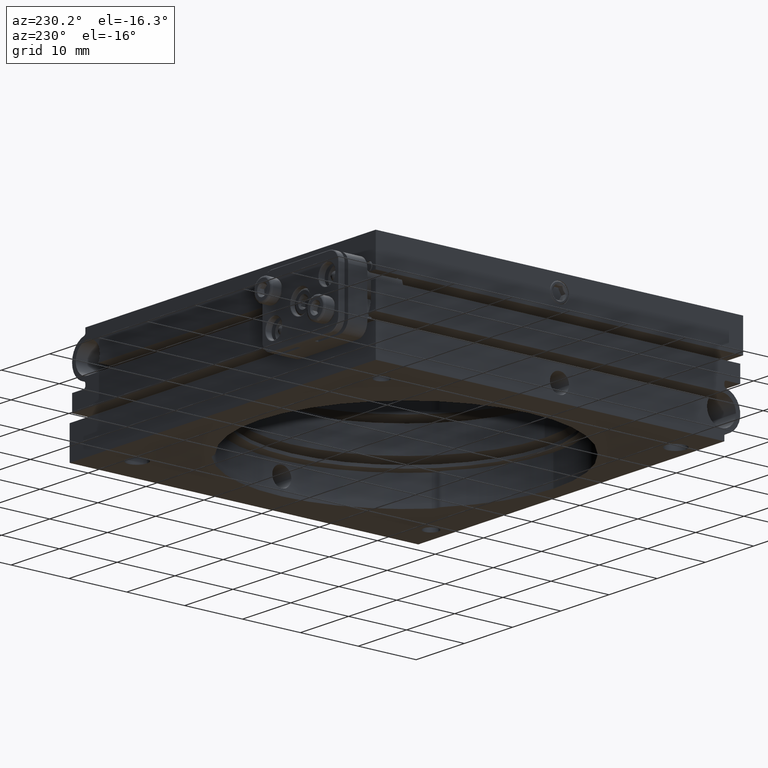
[diagram: clean part render]
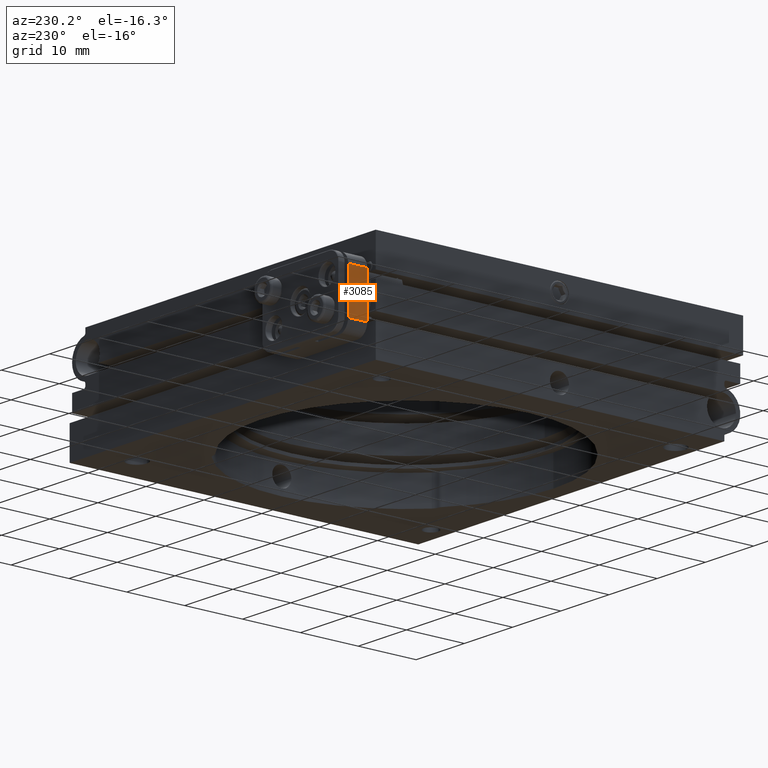
[diagram: same view with one face highlighted and labeled with its STEP entity id]
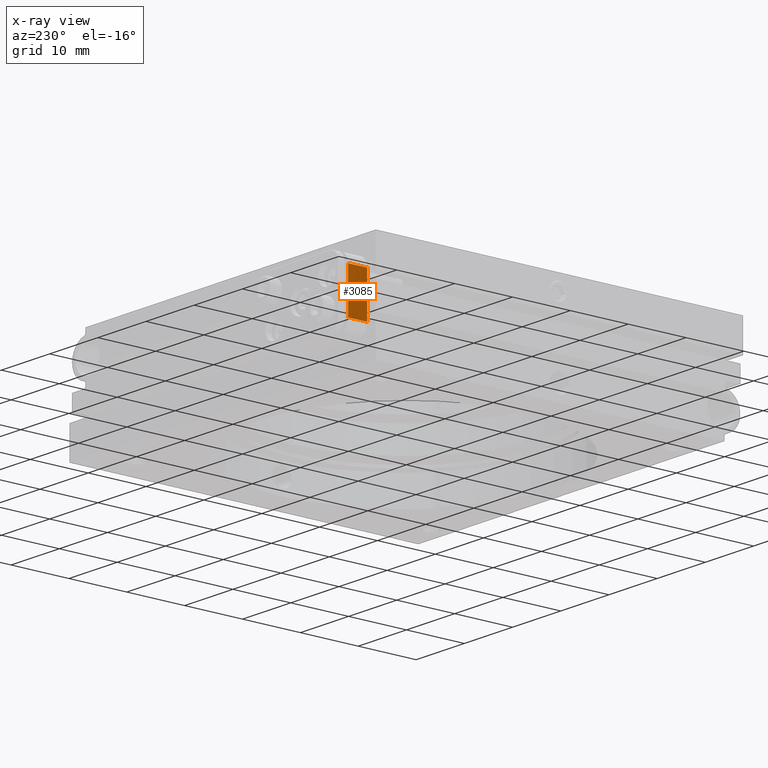
[diagram: x-ray of the same camera — body ghosted, the highlighted face saturated]
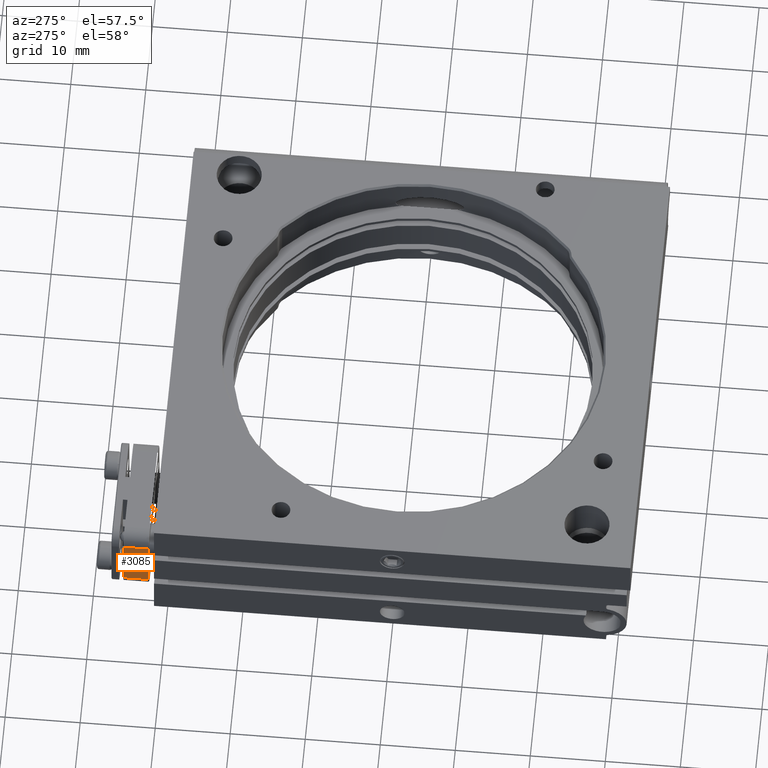
[diagram: same view with one face highlighted and labeled with its STEP entity id]
A machine part, auxiliary view. The second image highlights one B-rep face of the part: STEP entity #3085.
The next image is the same camera in x-ray: the body ghosted, the highlighted face saturated — about 0% of this face is hidden behind the body in this view.
A second angle (auxiliary view) of the same face is appended — the face is thin or edge-on in the first view.
In plain terms, the highlighted planar face has unit normal (1, 0, -0).
Its self-contained STEP definition (entity closure, byte-faithful):
#381 = AXIS2_PLACEMENT_3D ( 'NONE', #4503, #6930, #3058 ) ;
#1297 = DIRECTION ( 'NONE',  ( -0.000000000000000000, 1.000000000000000000, -0.000000000000000000 ) ) ;
#2066 = CARTESIAN_POINT ( 'NONE',  ( -31.00000000000000000, 32.60000000000000142, -5.750000000000001776 ) ) ;
#2169 = LINE ( 'NONE', #2066, #5343 ) ;
#3058 = DIRECTION ( 'NONE',  ( -1.508455196501571429E-16, 0.000000000000000000, -1.000000000000000000 ) ) ;
#3085 = ADVANCED_FACE ( 'NONE', ( #8444 ), #3680, .F. ) ;
#3291 = ORIENTED_EDGE ( 'NONE', *, *, #4652, .F. ) ;
#3680 = PLANE ( 'NONE',  #381 ) ;
#3803 = VECTOR ( 'NONE', #5365, 1000.000000000000000 ) ;
#3877 = VECTOR ( 'NONE', #1297, 1000.000000000000000 ) ;
#4111 = CARTESIAN_POINT ( 'NONE',  ( -31.00000000000000000, 35.89999999999999858, 3.749999999999998224 ) ) ;
#4275 = CARTESIAN_POINT ( 'NONE',  ( -30.99999999998726707, 32.59999999998633768, -3.750000000000002220 ) ) ;
#4503 = CARTESIAN_POINT ( 'NONE',  ( -31.00000000000000000, 37.50000000000000000, -5.750000000000001776 ) ) ;
#4597 = VERTEX_POINT ( 'NONE', #4275 ) ;
#4652 = EDGE_CURVE ( 'NONE', #6359, #4597, #2169, .T. ) ;
#4702 = EDGE_LOOP ( 'NONE', ( #3291, #8044, #8857, #6310 ) ) ;
#5205 = CARTESIAN_POINT ( 'NONE',  ( -31.00000000000000000, 35.89999999999999858, -5.750000000000001776 ) ) ;
#5343 = VECTOR ( 'NONE', #6910, 1000.000000000000000 ) ;
#5365 = DIRECTION ( 'NONE',  ( 0.000000000000000000, -1.000000000000000000, 0.000000000000000000 ) ) ;
#5387 = EDGE_CURVE ( 'NONE', #7716, #9087, #6972, .T. ) ;
#6137 = EDGE_CURVE ( 'NONE', #4597, #9087, #6843, .T. ) ;
#6310 = ORIENTED_EDGE ( 'NONE', *, *, #6137, .F. ) ;
#6359 = VERTEX_POINT ( 'NONE', #9986 ) ;
#6843 = LINE ( 'NONE', #8265, #3877 ) ;
#6910 = DIRECTION ( 'NONE',  ( -1.508455196501571429E-16, 0.000000000000000000, -1.000000000000000000 ) ) ;
#6930 = DIRECTION ( 'NONE',  ( 1.000000000000000000, 0.000000000000000000, -1.508455196501571429E-16 ) ) ;
#6972 = LINE ( 'NONE', #5205, #7451 ) ;
#7451 = VECTOR ( 'NONE', #9151, 1000.000000000000000 ) ;
#7716 = VERTEX_POINT ( 'NONE', #4111 ) ;
#8044 = ORIENTED_EDGE ( 'NONE', *, *, #8354, .F. ) ;
#8265 = CARTESIAN_POINT ( 'NONE',  ( -31.00000000000000000, 37.50000000000000000, -3.750000000000001776 ) ) ;
#8354 = EDGE_CURVE ( 'NONE', #7716, #6359, #9907, .T. ) ;
#8444 = FACE_OUTER_BOUND ( 'NONE', #4702, .T. ) ;
#8857 = ORIENTED_EDGE ( 'NONE', *, *, #5387, .T. ) ;
#9087 = VERTEX_POINT ( 'NONE', #9921 ) ;
#9151 = DIRECTION ( 'NONE',  ( 0.000000000000000000, -0.000000000000000000, -1.000000000000000000 ) ) ;
#9907 = LINE ( 'NONE', #9963, #3803 ) ;
#9921 = CARTESIAN_POINT ( 'NONE',  ( -31.00000000000000000, 35.89999999999999858, -3.750000000000001776 ) ) ;
#9963 = CARTESIAN_POINT ( 'NONE',  ( -31.00000000000000000, 37.50000000000000000, 3.749999999999998668 ) ) ;
#9986 = CARTESIAN_POINT ( 'NONE',  ( -30.99999999998726707, 32.59999999998633768, 3.749999999999997780 ) ) ;